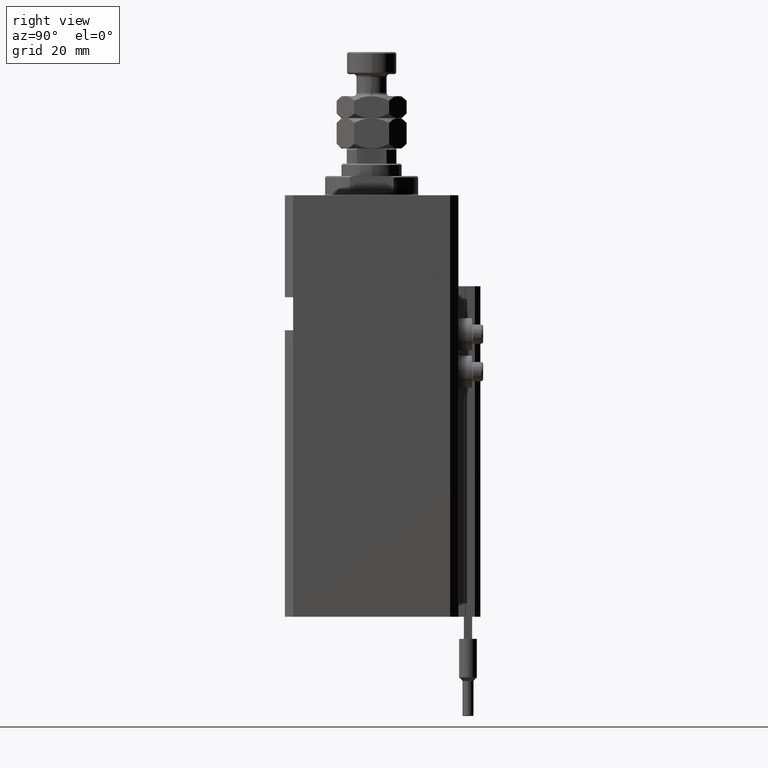
[diagram: clean part render]
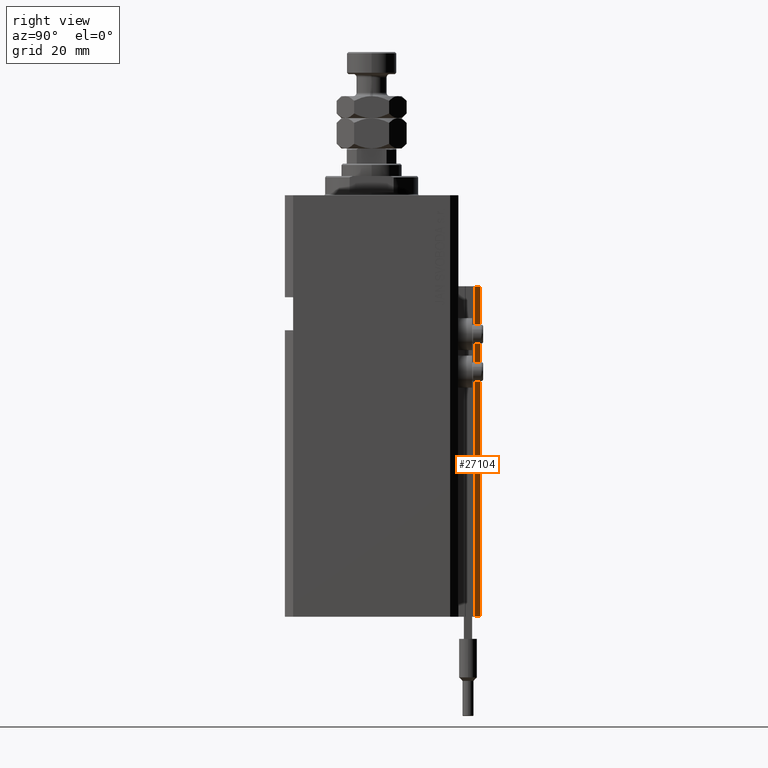
[diagram: same view with one face highlighted and labeled with its STEP entity id]
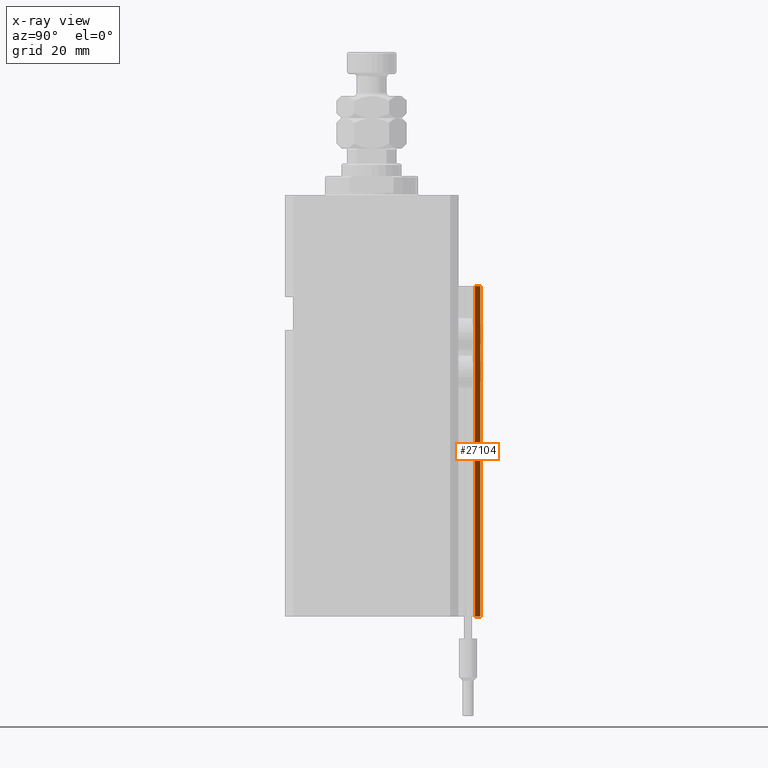
[diagram: x-ray of the same camera — body ghosted, the highlighted face saturated]
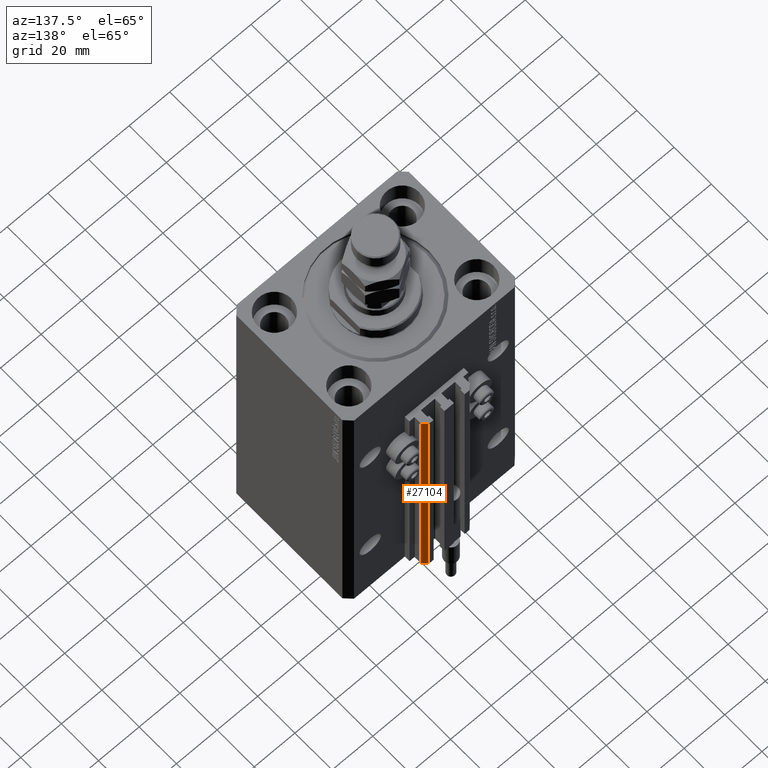
[diagram: same view with one face highlighted and labeled with its STEP entity id]
A machine part, right view. The second image highlights one B-rep face of the part: STEP entity #27104.
The next image is the same camera in x-ray: the body ghosted, the highlighted face saturated — about 0% of this face is hidden behind the body in this view.
A second angle (auxiliary view) of the same face is appended — the face is thin or edge-on in the first view.
In plain terms, the highlighted planar face has unit normal (0.7071, 0.7071, 0).
Its self-contained STEP definition (entity closure, byte-faithful):
#785 = LINE ( 'NONE', #43478, #2682 ) ;
#1192 = LINE ( 'NONE', #1704, #11602 ) ;
#1704 = CARTESIAN_POINT ( 'NONE',  ( 9.999999999999998224, 39.50000000000002132, -153.0000000000000000 ) ) ;
#2682 = VECTOR ( 'NONE', #38881, 1000.000000000000114 ) ;
#3779 = LINE ( 'NONE', #10961, #46105 ) ;
#4196 = FACE_OUTER_BOUND ( 'NONE', #5969, .T. ) ;
#4448 = DIRECTION ( 'NONE',  ( 0.7071067811865475727, 0.7071067811865475727, -0.000000000000000000 ) ) ;
#5011 = ORIENTED_EDGE ( 'NONE', *, *, #6134, .T. ) ;
#5653 = VERTEX_POINT ( 'NONE', #13098 ) ;
#5969 = EDGE_LOOP ( 'NONE', ( #26151, #28859, #5011, #19865 ) ) ;
#6134 = EDGE_CURVE ( 'NONE', #46578, #33201, #3779, .T. ) ;
#9329 = EDGE_CURVE ( 'NONE', #46578, #41107, #28001, .T. ) ;
#10961 = CARTESIAN_POINT ( 'NONE',  ( 12.00000000000000000, 37.50000000000002132, -153.0000000000000000 ) ) ;
#11602 = VECTOR ( 'NONE', #36989, 1000.000000000000000 ) ;
#13098 = CARTESIAN_POINT ( 'NONE',  ( 9.999999999999998224, 39.50000000000002132, -33.00000000000000000 ) ) ;
#14405 = EDGE_CURVE ( 'NONE', #41107, #5653, #785, .T. ) ;
#15469 = CARTESIAN_POINT ( 'NONE',  ( 12.00000000000000000, 37.50000000000002132, -153.0000000000000000 ) ) ;
#16231 = DIRECTION ( 'NONE',  ( 0.000000000000000000, 0.000000000000000000, 1.000000000000000000 ) ) ;
#16391 = CARTESIAN_POINT ( 'NONE',  ( 9.999999999999998224, 39.50000000000002132, -153.0000000000000000 ) ) ;
#19295 = CARTESIAN_POINT ( 'NONE',  ( 12.00000000000000000, 37.50000000000002132, -153.0000000000000000 ) ) ;
#19865 = ORIENTED_EDGE ( 'NONE', *, *, #39786, .T. ) ;
#20032 = PLANE ( 'NONE',  #38894 ) ;
#26151 = ORIENTED_EDGE ( 'NONE', *, *, #14405, .F. ) ;
#27104 = ADVANCED_FACE ( 'NONE', ( #4196 ), #20032, .T. ) ;
#28001 = LINE ( 'NONE', #15469, #33166 ) ;
#28859 = ORIENTED_EDGE ( 'NONE', *, *, #9329, .F. ) ;
#29893 = DIRECTION ( 'NONE',  ( -0.7071067811865474617, 0.7071067811865474617, 0.000000000000000000 ) ) ;
#32056 = DIRECTION ( 'NONE',  ( -0.7071067811865474617, 0.7071067811865474617, 0.000000000000000000 ) ) ;
#33166 = VECTOR ( 'NONE', #16231, 1000.000000000000000 ) ;
#33201 = VERTEX_POINT ( 'NONE', #16391 ) ;
#36989 = DIRECTION ( 'NONE',  ( 0.000000000000000000, 0.000000000000000000, 1.000000000000000000 ) ) ;
#38881 = DIRECTION ( 'NONE',  ( -0.7071067811865474617, 0.7071067811865474617, 0.000000000000000000 ) ) ;
#38894 = AXIS2_PLACEMENT_3D ( 'NONE', #43821, #4448, #32056 ) ;
#39786 = EDGE_CURVE ( 'NONE', #33201, #5653, #1192, .T. ) ;
#40247 = CARTESIAN_POINT ( 'NONE',  ( 12.00000000000000000, 37.50000000000002132, -33.00000000000000000 ) ) ;
#41107 = VERTEX_POINT ( 'NONE', #40247 ) ;
#43478 = CARTESIAN_POINT ( 'NONE',  ( 12.00000000000000000, 37.50000000000002132, -33.00000000000000000 ) ) ;
#43821 = CARTESIAN_POINT ( 'NONE',  ( 12.00000000000000000, 37.50000000000002132, -153.0000000000000000 ) ) ;
#46105 = VECTOR ( 'NONE', #29893, 1000.000000000000114 ) ;
#46578 = VERTEX_POINT ( 'NONE', #19295 ) ;